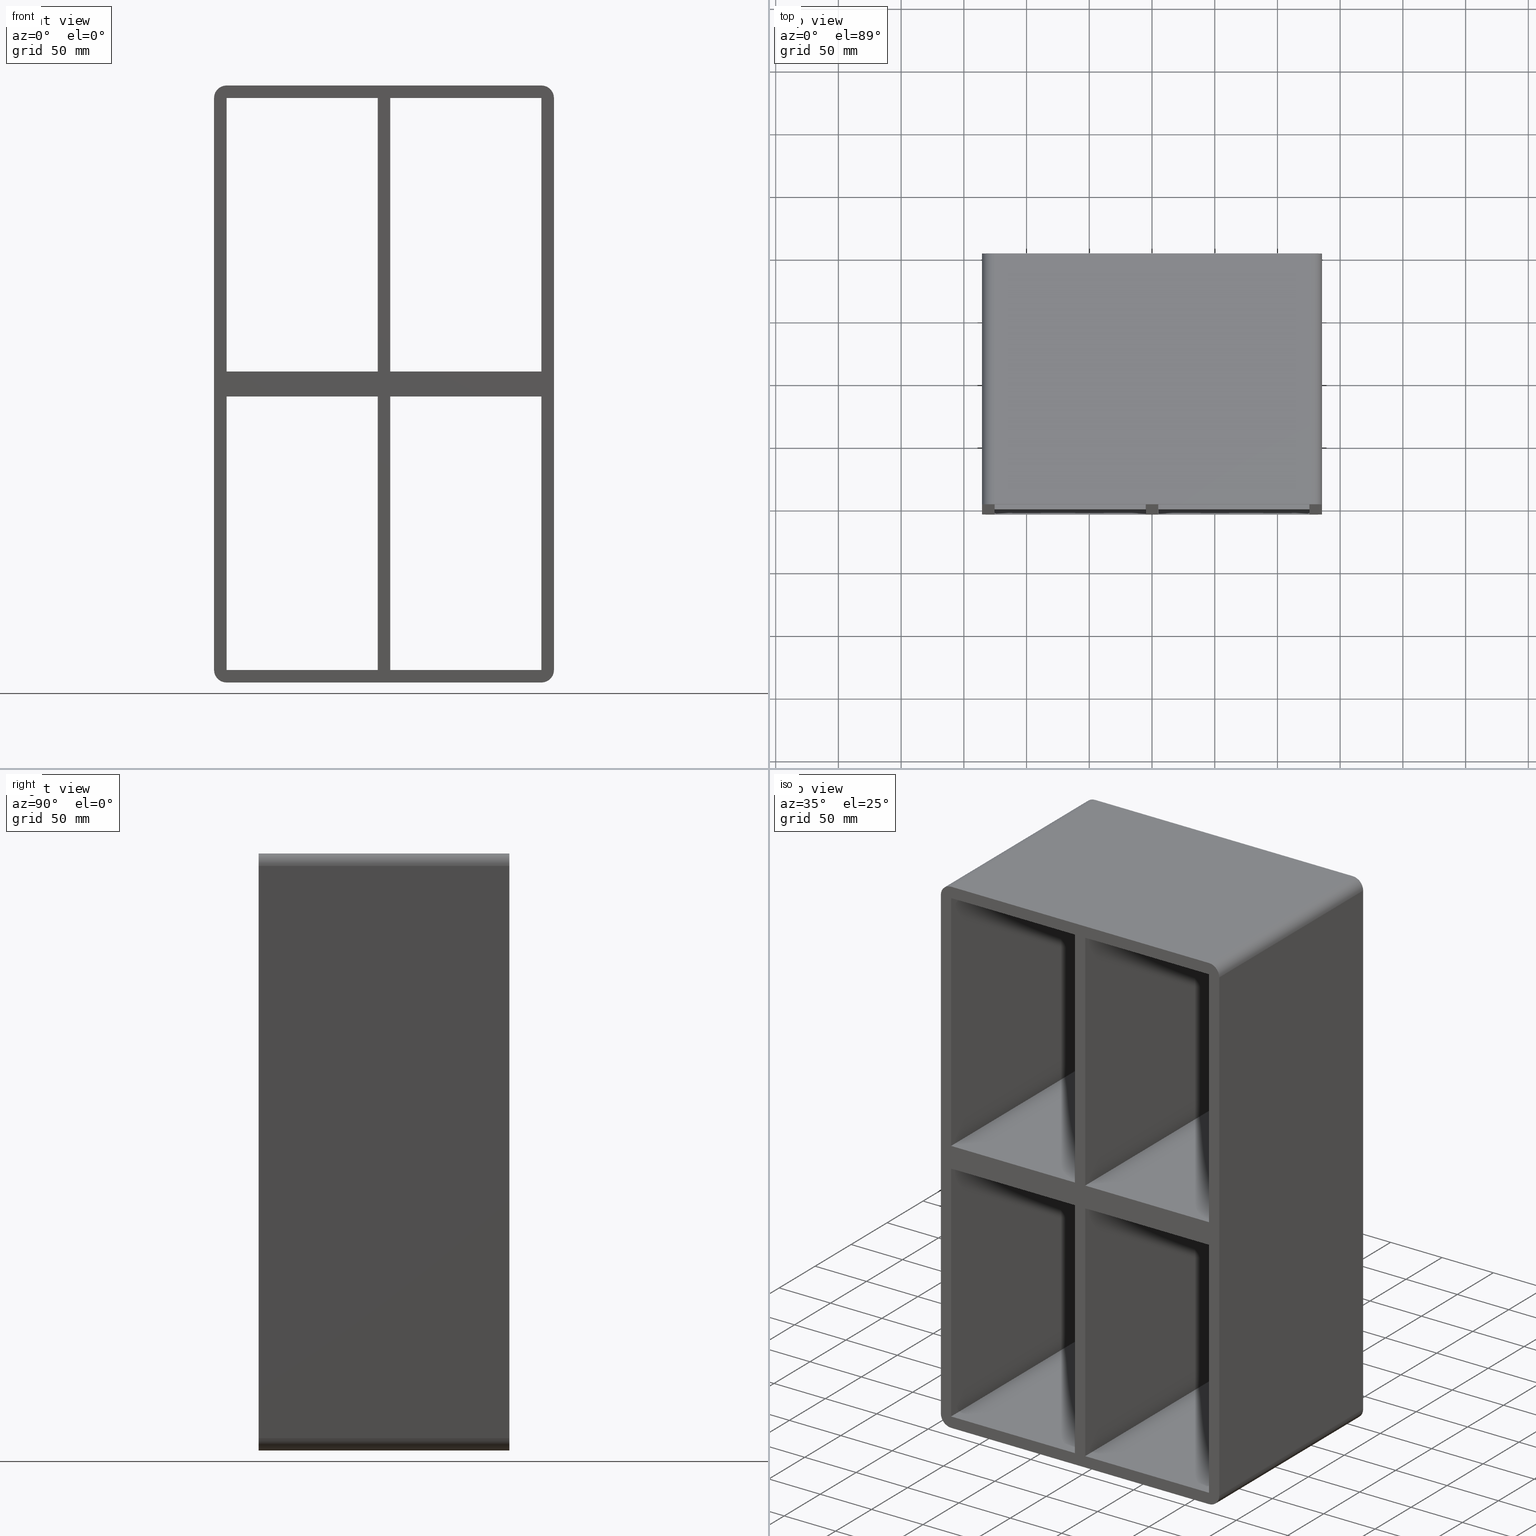
[diagram: canonical four-view strip — front | top / right | iso, engineering-drawing reading convention]
A machine part, canonical four-view strip (front | top / right | iso — engineering-drawing reading convention). The complete STEP part file that produces these views, byte-faithful:
ISO-10303-21;
HEADER;
/****************************************************************
 * Generated by software with PDElib inside                    *
 * PDElib Version v51a, created Wed 11/30/2011                  *
 * ITI Transcendata (http://www.transcendata.com/)              *
 ****************************************************************/
FILE_DESCRIPTION((''),'2;1');
FILE_NAME('C:\\RoxtecConfigurator\\CreatedFiles\\STEP\\SBTB6+6X2.stp','2013-02-26T13:31:53',(''),(''),'Autodesk Inventor 2013','Autodesk Inventor 2013','');
FILE_SCHEMA(('AUTOMOTIVE_DESIGN { 1 0 10303 214 1 1 1 1 }'));
ENDSEC;
DATA;
#5=APPLICATION_CONTEXT('automotive design');
#6=APPLICATION_PROTOCOL_DEFINITION('International Standard','automotive_design',2001,#5);
#7=PRODUCT_CONTEXT('',#5,'mechanical');
#8=PRODUCT('roxtec S_SF_G','roxtec S_SF_G',$,(#7));
#9=PRODUCT_RELATED_PRODUCT_CATEGORY('part',$,(#8));
#10=PRODUCT_DEFINITION_FORMATION('',$,#8);
#11=PRODUCT_DEFINITION_CONTEXT('part definition',#5,'design');
#12=PRODUCT_DEFINITION('',$,#10,#11);
#18=(NAMED_UNIT(*)PLANE_ANGLE_UNIT()SI_UNIT($,.RADIAN.));
#19=DIMENSIONAL_EXPONENTS(0.0,0.0,0.0,0.0,0.0,0.0,0.0);
#20=PLANE_ANGLE_MEASURE_WITH_UNIT(PLANE_ANGLE_MEASURE(0.0174532925),#18);
#24=(CONVERSION_BASED_UNIT('DEGREE',#20)NAMED_UNIT(#19)PLANE_ANGLE_UNIT());
#28=(NAMED_UNIT(*)SI_UNIT($,.STERADIAN.)SOLID_ANGLE_UNIT());
#32=(LENGTH_UNIT()NAMED_UNIT(*)SI_UNIT(.MILLI.,.METRE.));
#34=UNCERTAINTY_MEASURE_WITH_UNIT(LENGTH_MEASURE(0.01),#32,'DISTANCE_ACCURACY_VALUE','');
#36=(GEOMETRIC_REPRESENTATION_CONTEXT(3)GLOBAL_UNCERTAINTY_ASSIGNED_CONTEXT((#34))GLOBAL_UNIT_ASSIGNED_CONTEXT((#24,#28,#32))REPRESENTATION_CONTEXT('None','None'));
#37=AXIS2_PLACEMENT_3D('',#38,#39,#40);
#38=CARTESIAN_POINT('',(0.0,0.0,0.0));
#39=DIRECTION('',(0.0,0.0,1.0));
#40=DIRECTION('',(1.0,0.0,0.0));
#41=SHAPE_REPRESENTATION('',(#37),#36);
#42=PRODUCT_DEFINITION_SHAPE('','',#12);
#43=SHAPE_DEFINITION_REPRESENTATION(#42,#41);
#49=(NAMED_UNIT(*)PLANE_ANGLE_UNIT()SI_UNIT($,.RADIAN.));
#50=DIMENSIONAL_EXPONENTS(0.0,0.0,0.0,0.0,0.0,0.0,0.0);
#51=PLANE_ANGLE_MEASURE_WITH_UNIT(PLANE_ANGLE_MEASURE(0.0174532925),#49);
#55=(CONVERSION_BASED_UNIT('DEGREE',#51)NAMED_UNIT(#50)PLANE_ANGLE_UNIT());
#59=(NAMED_UNIT(*)SI_UNIT($,.STERADIAN.)SOLID_ANGLE_UNIT());
#63=(LENGTH_UNIT()NAMED_UNIT(*)SI_UNIT(.MILLI.,.METRE.));
#65=UNCERTAINTY_MEASURE_WITH_UNIT(LENGTH_MEASURE(0.000001),#63,'DISTANCE_ACCURACY_VALUE','');
#67=(GEOMETRIC_REPRESENTATION_CONTEXT(3)GLOBAL_UNCERTAINTY_ASSIGNED_CONTEXT((#65))GLOBAL_UNIT_ASSIGNED_CONTEXT((#55,#59,#63))REPRESENTATION_CONTEXT('','3D'));
#68=CARTESIAN_POINT('',(125.49999999999272,-3.0,-10.000000000017968));
#69=DIRECTION('',(0.0,0.0,-1.0));
#70=DIRECTION('',(-1.0,0.0,0.0));
#71=AXIS2_PLACEMENT_3D('',#68,#69,#70);
#72=PLANE('',#71);
#73=CARTESIAN_POINT('',(5.0,197.0,-10.000000000017939));
#74=VERTEX_POINT('',#73);
#75=CARTESIAN_POINT('',(5.0,-3.0,-10.000000000017939));
#76=VERTEX_POINT('',#75);
#77=CARTESIAN_POINT('',(5.0,197.0,-10.000000000017943));
#78=DIRECTION('',(0.0,-1.0,0.0));
#79=VECTOR('',#78,200.0);
#80=LINE('',#77,#79);
#81=EDGE_CURVE('',#74,#76,#80,.T.);
#82=ORIENTED_EDGE('',*,*,#81,.F.);
#83=CARTESIAN_POINT('',(125.49999999999274,197.0,-10.000000000017968));
#84=VERTEX_POINT('',#83);
#85=CARTESIAN_POINT('',(125.49999999999272,197.0,-10.000000000017968));
#86=DIRECTION('',(-1.0,0.0,0.0));
#87=VECTOR('',#86,120.49999999999272);
#88=LINE('',#85,#87);
#89=EDGE_CURVE('',#84,#74,#88,.T.);
#90=ORIENTED_EDGE('',*,*,#89,.F.);
#91=CARTESIAN_POINT('',(125.49999999999272,-3.0,-10.000000000017968));
#92=VERTEX_POINT('',#91);
#93=CARTESIAN_POINT('',(125.5,-3.0,-10.000000000017977));
#94=DIRECTION('',(0.0,1.0,0.0));
#95=VECTOR('',#94,199.99999999999997);
#96=LINE('',#93,#95);
#97=EDGE_CURVE('',#92,#84,#96,.T.);
#98=ORIENTED_EDGE('',*,*,#97,.F.);
#99=CARTESIAN_POINT('',(125.49999999999272,-3.0,-10.000000000017968));
#100=DIRECTION('',(-1.0,0.0,0.0));
#101=VECTOR('',#100,120.49999999999272);
#102=LINE('',#99,#101);
#103=EDGE_CURVE('',#92,#76,#102,.T.);
#104=ORIENTED_EDGE('',*,*,#103,.T.);
#105=EDGE_LOOP('',(#82,#90,#98,#104));
#106=FACE_OUTER_BOUND('',#105,.T.);
#107=ADVANCED_FACE('',(#106),#72,.T.);
#108=CARTESIAN_POINT('',(125.49999999999272,-3.0,-10.000000000017968));
#109=DIRECTION('',(0.0,0.0,-1.0));
#110=DIRECTION('',(-1.0,0.0,0.0));
#111=AXIS2_PLACEMENT_3D('',#108,#109,#110);
#112=PLANE('',#111);
#113=CARTESIAN_POINT('',(-5.000000000001243,-3.0,-10.000000000017934));
#114=VERTEX_POINT('',#113);
#115=CARTESIAN_POINT('',(-5.000000000001243,197.0,-10.000000000017934));
#116=VERTEX_POINT('',#115);
#117=CARTESIAN_POINT('',(-5.000000000001252,-3.0,-10.000000000017943));
#118=DIRECTION('',(0.0,1.0,0.0));
#119=VECTOR('',#118,200.0);
#120=LINE('',#117,#119);
#121=EDGE_CURVE('',#114,#116,#120,.T.);
#122=ORIENTED_EDGE('',*,*,#121,.F.);
#123=CARTESIAN_POINT('',(-125.49999999999967,-3.0,-10.000000000017906));
#124=VERTEX_POINT('',#123);
#125=CARTESIAN_POINT('',(-5.000000000001251,-3.0,-10.000000000017936));
#126=DIRECTION('',(-1.0,0.0,0.0));
#127=VECTOR('',#126,120.49999999999844);
#128=LINE('',#125,#127);
#129=EDGE_CURVE('',#114,#124,#128,.T.);
#130=ORIENTED_EDGE('',*,*,#129,.T.);
#131=CARTESIAN_POINT('',(-125.49999999999967,197.0,-10.000000000017906));
#132=VERTEX_POINT('',#131);
#133=CARTESIAN_POINT('',(-125.50000000000003,196.99999999999997,-10.000000000017909));
#134=DIRECTION('',(0.0,-1.0,0.0));
#135=VECTOR('',#134,199.99999999999997);
#136=LINE('',#133,#135);
#137=EDGE_CURVE('',#132,#124,#136,.T.);
#138=ORIENTED_EDGE('',*,*,#137,.F.);
#139=CARTESIAN_POINT('',(-5.000000000001251,197.0,-10.000000000017936));
#140=DIRECTION('',(-1.0,0.0,0.0));
#141=VECTOR('',#140,120.49999999999844);
#142=LINE('',#139,#141);
#143=EDGE_CURVE('',#116,#132,#142,.T.);
#144=ORIENTED_EDGE('',*,*,#143,.F.);
#145=EDGE_LOOP('',(#122,#130,#138,#144));
#146=FACE_OUTER_BOUND('',#145,.T.);
#147=ADVANCED_FACE('',(#146),#112,.T.);
#148=CARTESIAN_POINT('',(-125.49999999999967,-3.0,10.0));
#149=DIRECTION('',(0.0,0.0,1.0));
#150=DIRECTION('',(1.0,0.0,0.0));
#151=AXIS2_PLACEMENT_3D('',#148,#149,#150);
#152=PLANE('',#151);
#153=CARTESIAN_POINT('',(5.0,-3.0,10.0));
#154=VERTEX_POINT('',#153);
#155=CARTESIAN_POINT('',(5.0,197.0,10.0));
#156=VERTEX_POINT('',#155);
#157=CARTESIAN_POINT('',(5.0,-3.0,10.0));
#158=DIRECTION('',(0.0,1.0,0.0));
#159=VECTOR('',#158,200.0);
#160=LINE('',#157,#159);
#161=EDGE_CURVE('',#154,#156,#160,.T.);
#162=ORIENTED_EDGE('',*,*,#161,.F.);
#163=CARTESIAN_POINT('',(125.4999999999999,-3.0,10.0));
#164=VERTEX_POINT('',#163);
#165=CARTESIAN_POINT('',(4.999999999999986,-3.0,10.0));
#166=DIRECTION('',(1.0,0.0,0.0));
#167=VECTOR('',#166,120.49999999999994);
#168=LINE('',#165,#167);
#169=EDGE_CURVE('',#154,#164,#168,.T.);
#170=ORIENTED_EDGE('',*,*,#169,.T.);
#171=CARTESIAN_POINT('',(125.49999999999991,197.0,10.0));
#172=VERTEX_POINT('',#171);
#173=CARTESIAN_POINT('',(125.5,196.99999999999997,10.0));
#174=DIRECTION('',(0.0,-1.0,0.0));
#175=VECTOR('',#174,199.99999999999997);
#176=LINE('',#173,#175);
#177=EDGE_CURVE('',#172,#164,#176,.T.);
#178=ORIENTED_EDGE('',*,*,#177,.F.);
#179=CARTESIAN_POINT('',(4.999999999999986,197.0,10.0));
#180=DIRECTION('',(1.0,0.0,0.0));
#181=VECTOR('',#180,120.49999999999994);
#182=LINE('',#179,#181);
#183=EDGE_CURVE('',#156,#172,#182,.T.);
#184=ORIENTED_EDGE('',*,*,#183,.F.);
#185=EDGE_LOOP('',(#162,#170,#178,#184));
#186=FACE_OUTER_BOUND('',#185,.T.);
#187=ADVANCED_FACE('',(#186),#152,.T.);
#188=CARTESIAN_POINT('',(-125.49999999999967,-3.0,10.0));
#189=DIRECTION('',(0.0,0.0,1.0));
#190=DIRECTION('',(1.0,0.0,0.0));
#191=AXIS2_PLACEMENT_3D('',#188,#189,#190);
#192=PLANE('',#191);
#193=CARTESIAN_POINT('',(-5.000000000001261,197.0,10.0));
#194=VERTEX_POINT('',#193);
#195=CARTESIAN_POINT('',(-5.000000000001261,-3.0,10.0));
#196=VERTEX_POINT('',#195);
#197=CARTESIAN_POINT('',(-5.000000000001261,197.0,10.0));
#198=DIRECTION('',(0.0,-1.0,0.0));
#199=VECTOR('',#198,200.0);
#200=LINE('',#197,#199);
#201=EDGE_CURVE('',#194,#196,#200,.T.);
#202=ORIENTED_EDGE('',*,*,#201,.F.);
#203=CARTESIAN_POINT('',(-125.49999999999967,197.0,10.0));
#204=VERTEX_POINT('',#203);
#205=CARTESIAN_POINT('',(-125.49999999999967,197.0,10.0));
#206=DIRECTION('',(1.0,0.0,0.0));
#207=VECTOR('',#206,120.49999999999841);
#208=LINE('',#205,#207);
#209=EDGE_CURVE('',#204,#194,#208,.T.);
#210=ORIENTED_EDGE('',*,*,#209,.F.);
#211=CARTESIAN_POINT('',(-125.49999999999967,-3.0,10.0));
#212=VERTEX_POINT('',#211);
#213=CARTESIAN_POINT('',(-125.50000000000003,-3.0,10.0));
#214=DIRECTION('',(0.0,1.0,0.0));
#215=VECTOR('',#214,199.99999999999997);
#216=LINE('',#213,#215);
#217=EDGE_CURVE('',#212,#204,#216,.T.);
#218=ORIENTED_EDGE('',*,*,#217,.F.);
#219=CARTESIAN_POINT('',(-125.49999999999967,-3.0,10.0));
#220=DIRECTION('',(1.0,0.0,0.0));
#221=VECTOR('',#220,120.49999999999841);
#222=LINE('',#219,#221);
#223=EDGE_CURVE('',#212,#196,#222,.T.);
#224=ORIENTED_EDGE('',*,*,#223,.T.);
#225=EDGE_LOOP('',(#202,#210,#218,#224));
#226=FACE_OUTER_BOUND('',#225,.T.);
#227=ADVANCED_FACE('',(#226),#192,.T.);
#228=CARTESIAN_POINT('',(-125.50000000000003,0.0,-228.00000000000006));
#229=DIRECTION('',(-1.0,0.0,0.0));
#230=DIRECTION('',(0.0,0.0,1.0));
#231=AXIS2_PLACEMENT_3D('',#228,#229,#230);
#232=PLANE('',#231);
#233=ORIENTED_EDGE('',*,*,#217,.T.);
#234=CARTESIAN_POINT('',(-125.5,197.0,228.00000000000006));
#235=VERTEX_POINT('',#234);
#236=CARTESIAN_POINT('',(-125.50000000000003,197.0,227.99999999999997));
#237=DIRECTION('',(0.0,0.0,-1.0));
#238=VECTOR('',#237,217.99999999999997);
#239=LINE('',#236,#238);
#240=EDGE_CURVE('',#235,#204,#239,.T.);
#241=ORIENTED_EDGE('',*,*,#240,.F.);
#242=CARTESIAN_POINT('',(-125.5,-3.0,228.00000000000006));
#243=VERTEX_POINT('',#242);
#244=CARTESIAN_POINT('',(-125.50000000000003,-3.0,228.0));
#245=DIRECTION('',(0.0,1.0,0.0));
#246=VECTOR('',#245,200.0);
#247=LINE('',#244,#246);
#248=EDGE_CURVE('',#243,#235,#247,.T.);
#249=ORIENTED_EDGE('',*,*,#248,.F.);
#250=CARTESIAN_POINT('',(-125.50000000000003,-3.0,10.0));
#251=DIRECTION('',(0.0,0.0,1.0));
#252=VECTOR('',#251,217.99999999999997);
#253=LINE('',#250,#252);
#254=EDGE_CURVE('',#212,#243,#253,.T.);
#255=ORIENTED_EDGE('',*,*,#254,.F.);
#256=EDGE_LOOP('',(#233,#241,#249,#255));
#257=FACE_OUTER_BOUND('',#256,.T.);
#258=ADVANCED_FACE('',(#257),#232,.F.);
#259=CARTESIAN_POINT('',(125.5,0.0,228.0));
#260=DIRECTION('',(1.0,0.0,0.0));
#261=DIRECTION('',(0.0,0.0,-1.0));
#262=AXIS2_PLACEMENT_3D('',#259,#260,#261);
#263=PLANE('',#262);
#264=ORIENTED_EDGE('',*,*,#97,.T.);
#265=CARTESIAN_POINT('',(125.5,197.0,-228.00000000000006));
#266=VERTEX_POINT('',#265);
#267=CARTESIAN_POINT('',(125.5,197.0,-228.0));
#268=DIRECTION('',(0.0,0.0,1.0));
#269=VECTOR('',#268,217.99999999998204);
#270=LINE('',#267,#269);
#271=EDGE_CURVE('',#266,#84,#270,.T.);
#272=ORIENTED_EDGE('',*,*,#271,.F.);
#273=CARTESIAN_POINT('',(125.5,-3.0,-228.00000000000006));
#274=VERTEX_POINT('',#273);
#275=CARTESIAN_POINT('',(125.5,197.0,-228.00000000000006));
#276=DIRECTION('',(0.0,-1.0,0.0));
#277=VECTOR('',#276,200.0);
#278=LINE('',#275,#277);
#279=EDGE_CURVE('',#266,#274,#278,.T.);
#280=ORIENTED_EDGE('',*,*,#279,.T.);
#281=CARTESIAN_POINT('',(125.5,-3.0,-10.000000000017963));
#282=DIRECTION('',(0.0,0.0,-1.0));
#283=VECTOR('',#282,217.99999999998204);
#284=LINE('',#281,#283);
#285=EDGE_CURVE('',#92,#274,#284,.T.);
#286=ORIENTED_EDGE('',*,*,#285,.F.);
#287=EDGE_LOOP('',(#264,#272,#280,#286));
#288=FACE_OUTER_BOUND('',#287,.T.);
#289=ADVANCED_FACE('',(#288),#263,.F.);
#290=CARTESIAN_POINT('',(125.5,0.0,228.0));
#291=DIRECTION('',(1.0,0.0,0.0));
#292=DIRECTION('',(0.0,0.0,-1.0));
#293=AXIS2_PLACEMENT_3D('',#290,#291,#292);
#294=PLANE('',#293);
#295=ORIENTED_EDGE('',*,*,#177,.T.);
#296=CARTESIAN_POINT('',(125.5,-3.0,228.00000000000006));
#297=VERTEX_POINT('',#296);
#298=CARTESIAN_POINT('',(125.5,-3.0,228.00000000000006));
#299=DIRECTION('',(0.0,0.0,-1.0));
#300=VECTOR('',#299,218.00000000000006);
#301=LINE('',#298,#300);
#302=EDGE_CURVE('',#297,#164,#301,.T.);
#303=ORIENTED_EDGE('',*,*,#302,.F.);
#304=CARTESIAN_POINT('',(125.5,197.0,228.00000000000006));
#305=VERTEX_POINT('',#304);
#306=CARTESIAN_POINT('',(125.5,-3.0,228.0));
#307=DIRECTION('',(0.0,1.0,0.0));
#308=VECTOR('',#307,200.0);
#309=LINE('',#306,#308);
#310=EDGE_CURVE('',#297,#305,#309,.T.);
#311=ORIENTED_EDGE('',*,*,#310,.T.);
#312=CARTESIAN_POINT('',(125.5,197.0,10.0));
#313=DIRECTION('',(0.0,0.0,1.0));
#314=VECTOR('',#313,218.00000000000006);
#315=LINE('',#312,#314);
#316=EDGE_CURVE('',#172,#305,#315,.T.);
#317=ORIENTED_EDGE('',*,*,#316,.F.);
#318=EDGE_LOOP('',(#295,#303,#311,#317));
#319=FACE_OUTER_BOUND('',#318,.T.);
#320=ADVANCED_FACE('',(#319),#294,.F.);
#321=CARTESIAN_POINT('',(-1.463651E-014,197.0,0.0));
#322=DIRECTION('',(0.0,1.0,0.0));
#323=DIRECTION('',(0.0,0.0,1.0));
#324=AXIS2_PLACEMENT_3D('',#321,#322,#323);
#325=PLANE('',#324);
#326=CARTESIAN_POINT('',(-135.50000000000003,197.0,-228.0));
#327=VERTEX_POINT('',#326);
#328=CARTESIAN_POINT('',(-125.50000000000003,197.0,-238.0));
#329=VERTEX_POINT('',#328);
#330=CARTESIAN_POINT('',(-125.50000000000003,197.0,-228.0));
#331=DIRECTION('',(0.0,-1.0,0.0));
#332=DIRECTION('',(-0.707106781186547,0.0,-0.707106781186547));
#333=AXIS2_PLACEMENT_3D('',#330,#331,#332);
#334=CIRCLE('',#333,9.999999999999998);
#335=EDGE_CURVE('',#327,#329,#334,.T.);
#336=ORIENTED_EDGE('',*,*,#335,.F.);
#337=CARTESIAN_POINT('',(-135.50000000000003,197.0,228.0));
#338=VERTEX_POINT('',#337);
#339=CARTESIAN_POINT('',(-135.50000000000003,197.0,-228.0));
#340=DIRECTION('',(0.0,0.0,1.0));
#341=VECTOR('',#340,456.0);
#342=LINE('',#339,#341);
#343=EDGE_CURVE('',#327,#338,#342,.T.);
#344=ORIENTED_EDGE('',*,*,#343,.T.);
#345=CARTESIAN_POINT('',(-125.50000000000003,197.0,238.0));
#346=VERTEX_POINT('',#345);
#347=CARTESIAN_POINT('',(-125.50000000000003,197.0,228.0));
#348=DIRECTION('',(0.0,-1.0,0.0));
#349=DIRECTION('',(-0.707106781186547,0.0,0.707106781186547));
#350=AXIS2_PLACEMENT_3D('',#347,#348,#349);
#351=CIRCLE('',#350,9.999999999999998);
#352=EDGE_CURVE('',#346,#338,#351,.T.);
#353=ORIENTED_EDGE('',*,*,#352,.F.);
#354=CARTESIAN_POINT('',(125.49999999999999,197.0,238.0));
#355=VERTEX_POINT('',#354);
#356=CARTESIAN_POINT('',(-125.50000000000003,197.0,238.0));
#357=DIRECTION('',(1.0,0.0,0.0));
#358=VECTOR('',#357,251.0);
#359=LINE('',#356,#358);
#360=EDGE_CURVE('',#346,#355,#359,.T.);
#361=ORIENTED_EDGE('',*,*,#360,.T.);
#362=CARTESIAN_POINT('',(135.5,197.0,228.0));
#363=VERTEX_POINT('',#362);
#364=CARTESIAN_POINT('',(125.49999999999999,197.0,228.0));
#365=DIRECTION('',(0.0,-1.0,0.0));
#366=DIRECTION('',(0.707106781186547,0.0,0.707106781186547));
#367=AXIS2_PLACEMENT_3D('',#364,#365,#366);
#368=CIRCLE('',#367,9.999999999999998);
#369=EDGE_CURVE('',#363,#355,#368,.T.);
#370=ORIENTED_EDGE('',*,*,#369,.F.);
#371=CARTESIAN_POINT('',(135.5,197.0,-228.0));
#372=VERTEX_POINT('',#371);
#373=CARTESIAN_POINT('',(135.5,197.0,228.0));
#374=DIRECTION('',(0.0,0.0,-1.0));
#375=VECTOR('',#374,456.0);
#376=LINE('',#373,#375);
#377=EDGE_CURVE('',#363,#372,#376,.T.);
#378=ORIENTED_EDGE('',*,*,#377,.T.);
#379=CARTESIAN_POINT('',(125.49999999999999,197.0,-238.0));
#380=VERTEX_POINT('',#379);
#381=CARTESIAN_POINT('',(125.49999999999999,197.0,-228.0));
#382=DIRECTION('',(0.0,-1.0,0.0));
#383=DIRECTION('',(0.707106781186547,0.0,-0.707106781186547));
#384=AXIS2_PLACEMENT_3D('',#381,#382,#383);
#385=CIRCLE('',#384,9.999999999999998);
#386=EDGE_CURVE('',#380,#372,#385,.T.);
#387=ORIENTED_EDGE('',*,*,#386,.F.);
#388=CARTESIAN_POINT('',(125.5,197.0,-238.0));
#389=DIRECTION('',(-1.0,0.0,0.0));
#390=VECTOR('',#389,251.0);
#391=LINE('',#388,#390);
#392=EDGE_CURVE('',#380,#329,#391,.T.);
#393=ORIENTED_EDGE('',*,*,#392,.T.);
#394=EDGE_LOOP('',(#336,#344,#353,#361,#370,#378,#387,#393));
#395=FACE_OUTER_BOUND('',#394,.T.);
#396=CARTESIAN_POINT('',(-125.5,197.0,-228.00000000000006));
#397=VERTEX_POINT('',#396);
#398=CARTESIAN_POINT('',(-125.50000000000003,197.0,-10.000000000017906));
#399=DIRECTION('',(0.0,0.0,-1.0));
#400=VECTOR('',#399,217.99999999998215);
#401=LINE('',#398,#400);
#402=EDGE_CURVE('',#132,#397,#401,.T.);
#403=ORIENTED_EDGE('',*,*,#402,.T.);
#404=CARTESIAN_POINT('',(-5.000000000001217,197.0,-228.00000000000006));
#405=VERTEX_POINT('',#404);
#406=CARTESIAN_POINT('',(-125.5,197.0,-228.00000000000006));
#407=DIRECTION('',(1.0,0.0,0.0));
#408=VECTOR('',#407,120.49999999999878);
#409=LINE('',#406,#408);
#410=EDGE_CURVE('',#397,#405,#409,.T.);
#411=ORIENTED_EDGE('',*,*,#410,.T.);
#412=CARTESIAN_POINT('',(-5.000000000001217,197.0,-228.00000000000006));
#413=DIRECTION('',(0.0,0.0,1.0));
#414=VECTOR('',#413,217.99999999998209);
#415=LINE('',#412,#414);
#416=EDGE_CURVE('',#405,#116,#415,.T.);
#417=ORIENTED_EDGE('',*,*,#416,.T.);
#418=ORIENTED_EDGE('',*,*,#143,.T.);
#419=EDGE_LOOP('',(#403,#411,#417,#418));
#420=FACE_BOUND('',#419,.T.);
#421=ORIENTED_EDGE('',*,*,#316,.T.);
#422=CARTESIAN_POINT('',(5.0,197.0,228.00000000000006));
#423=VERTEX_POINT('',#422);
#424=CARTESIAN_POINT('',(125.5,197.0,228.0));
#425=DIRECTION('',(-1.0,0.0,0.0));
#426=VECTOR('',#425,120.5);
#427=LINE('',#424,#426);
#428=EDGE_CURVE('',#305,#423,#427,.T.);
#429=ORIENTED_EDGE('',*,*,#428,.T.);
#430=CARTESIAN_POINT('',(5.0,197.0,228.00000000000006));
#431=DIRECTION('',(0.0,0.0,-1.0));
#432=VECTOR('',#431,218.00000000000006);
#433=LINE('',#430,#432);
#434=EDGE_CURVE('',#423,#156,#433,.T.);
#435=ORIENTED_EDGE('',*,*,#434,.T.);
#436=ORIENTED_EDGE('',*,*,#183,.T.);
#437=EDGE_LOOP('',(#421,#429,#435,#436));
#438=FACE_BOUND('',#437,.T.);
#439=ORIENTED_EDGE('',*,*,#89,.T.);
#440=CARTESIAN_POINT('',(5.0,197.0,-227.99999999997084));
#441=VERTEX_POINT('',#440);
#442=CARTESIAN_POINT('',(5.0,197.0,-10.000000000017934));
#443=DIRECTION('',(0.0,0.0,-1.0));
#444=VECTOR('',#443,217.99999999995291);
#445=LINE('',#442,#444);
#446=EDGE_CURVE('',#74,#441,#445,.T.);
#447=ORIENTED_EDGE('',*,*,#446,.T.);
#448=CARTESIAN_POINT('',(5.0,197.0,-228.00000000000006));
#449=DIRECTION('',(1.0,0.0,0.0));
#450=VECTOR('',#449,120.5);
#451=LINE('',#448,#450);
#452=EDGE_CURVE('',#441,#266,#451,.T.);
#453=ORIENTED_EDGE('',*,*,#452,.T.);
#454=ORIENTED_EDGE('',*,*,#271,.T.);
#455=EDGE_LOOP('',(#439,#447,#453,#454));
#456=FACE_BOUND('',#455,.T.);
#457=ORIENTED_EDGE('',*,*,#209,.T.);
#458=CARTESIAN_POINT('',(-5.000000000001297,197.0,228.00000000000006));
#459=VERTEX_POINT('',#458);
#460=CARTESIAN_POINT('',(-5.000000000001259,197.0,10.0));
#461=DIRECTION('',(0.0,0.0,1.0));
#462=VECTOR('',#461,218.00000000000006);
#463=LINE('',#460,#462);
#464=EDGE_CURVE('',#194,#459,#463,.T.);
#465=ORIENTED_EDGE('',*,*,#464,.T.);
#466=CARTESIAN_POINT('',(-5.0000000000013,197.0,228.0));
#467=DIRECTION('',(-1.0,0.0,0.0));
#468=VECTOR('',#467,120.49999999999869);
#469=LINE('',#466,#468);
#470=EDGE_CURVE('',#459,#235,#469,.T.);
#471=ORIENTED_EDGE('',*,*,#470,.T.);
#472=ORIENTED_EDGE('',*,*,#240,.T.);
#473=EDGE_LOOP('',(#457,#465,#471,#472));
#474=FACE_BOUND('',#473,.T.);
#475=ADVANCED_FACE('',(#395,#420,#438,#456,#474),#325,.T.);
#476=CARTESIAN_POINT('',(-5.000000000001217,-3.0,-228.00000000000006));
#477=DIRECTION('',(-1.0,0.0,0.0));
#478=DIRECTION('',(0.0,0.0,1.0));
#479=AXIS2_PLACEMENT_3D('',#476,#477,#478);
#480=PLANE('',#479);
#481=ORIENTED_EDGE('',*,*,#201,.T.);
#482=CARTESIAN_POINT('',(-5.000000000001297,-3.0,228.00000000000006));
#483=VERTEX_POINT('',#482);
#484=CARTESIAN_POINT('',(-5.000000000001259,-3.0,10.0));
#485=DIRECTION('',(0.0,0.0,1.0));
#486=VECTOR('',#485,218.00000000000006);
#487=LINE('',#484,#486);
#488=EDGE_CURVE('',#196,#483,#487,.T.);
#489=ORIENTED_EDGE('',*,*,#488,.T.);
#490=CARTESIAN_POINT('',(-5.000000000001301,196.99999999999997,228.0));
#491=DIRECTION('',(0.0,-1.0,0.0));
#492=VECTOR('',#491,199.99999999999997);
#493=LINE('',#490,#492);
#494=EDGE_CURVE('',#459,#483,#493,.T.);
#495=ORIENTED_EDGE('',*,*,#494,.F.);
#496=ORIENTED_EDGE('',*,*,#464,.F.);
#497=EDGE_LOOP('',(#481,#489,#495,#496));
#498=FACE_OUTER_BOUND('',#497,.T.);
#499=ADVANCED_FACE('',(#498),#480,.T.);
#500=CARTESIAN_POINT('',(5.0,-3.0,228.00000000000006));
#501=DIRECTION('',(1.0,0.0,0.0));
#502=DIRECTION('',(0.0,0.0,-1.0));
#503=AXIS2_PLACEMENT_3D('',#500,#501,#502);
#504=PLANE('',#503);
#505=ORIENTED_EDGE('',*,*,#161,.T.);
#506=ORIENTED_EDGE('',*,*,#434,.F.);
#507=CARTESIAN_POINT('',(5.0,-3.0,228.00000000000006));
#508=VERTEX_POINT('',#507);
#509=CARTESIAN_POINT('',(5.0,-3.0,228.0));
#510=DIRECTION('',(0.0,1.0,0.0));
#511=VECTOR('',#510,199.99999999999997);
#512=LINE('',#509,#511);
#513=EDGE_CURVE('',#508,#423,#512,.T.);
#514=ORIENTED_EDGE('',*,*,#513,.F.);
#515=CARTESIAN_POINT('',(5.0,-3.0,228.00000000000006));
#516=DIRECTION('',(0.0,0.0,-1.0));
#517=VECTOR('',#516,218.00000000000006);
#518=LINE('',#515,#517);
#519=EDGE_CURVE('',#508,#154,#518,.T.);
#520=ORIENTED_EDGE('',*,*,#519,.T.);
#521=EDGE_LOOP('',(#505,#506,#514,#520));
#522=FACE_OUTER_BOUND('',#521,.T.);
#523=ADVANCED_FACE('',(#522),#504,.T.);
#524=CARTESIAN_POINT('',(-5.000000000001217,-3.0,-228.00000000000006));
#525=DIRECTION('',(-1.0,0.0,0.0));
#526=DIRECTION('',(0.0,0.0,1.0));
#527=AXIS2_PLACEMENT_3D('',#524,#525,#526);
#528=PLANE('',#527);
#529=ORIENTED_EDGE('',*,*,#121,.T.);
#530=ORIENTED_EDGE('',*,*,#416,.F.);
#531=CARTESIAN_POINT('',(-5.000000000001217,-3.0,-228.00000000000006));
#532=VERTEX_POINT('',#531);
#533=CARTESIAN_POINT('',(-5.000000000001208,-3.0,-228.00000000000006));
#534=DIRECTION('',(0.0,1.0,0.0));
#535=VECTOR('',#534,199.99999999999997);
#536=LINE('',#533,#535);
#537=EDGE_CURVE('',#532,#405,#536,.T.);
#538=ORIENTED_EDGE('',*,*,#537,.F.);
#539=CARTESIAN_POINT('',(-5.000000000001217,-3.0,-228.00000000000006));
#540=DIRECTION('',(0.0,0.0,1.0));
#541=VECTOR('',#540,217.99999999998209);
#542=LINE('',#539,#541);
#543=EDGE_CURVE('',#532,#114,#542,.T.);
#544=ORIENTED_EDGE('',*,*,#543,.T.);
#545=EDGE_LOOP('',(#529,#530,#538,#544));
#546=FACE_OUTER_BOUND('',#545,.T.);
#547=ADVANCED_FACE('',(#546),#528,.T.);
#548=CARTESIAN_POINT('',(5.0,-3.0,228.00000000000006));
#549=DIRECTION('',(1.0,0.0,0.0));
#550=DIRECTION('',(0.0,0.0,-1.0));
#551=AXIS2_PLACEMENT_3D('',#548,#549,#550);
#552=PLANE('',#551);
#553=ORIENTED_EDGE('',*,*,#81,.T.);
#554=CARTESIAN_POINT('',(5.0,-3.0,-227.99999999997084));
#555=VERTEX_POINT('',#554);
#556=CARTESIAN_POINT('',(5.0,-3.0,-10.000000000017934));
#557=DIRECTION('',(0.0,0.0,-1.0));
#558=VECTOR('',#557,217.99999999995291);
#559=LINE('',#556,#558);
#560=EDGE_CURVE('',#76,#555,#559,.T.);
#561=ORIENTED_EDGE('',*,*,#560,.T.);
#562=CARTESIAN_POINT('',(5.0,196.99999999999997,-228.00000000000006));
#563=DIRECTION('',(0.0,-1.0,0.0));
#564=VECTOR('',#563,199.99999999999997);
#565=LINE('',#562,#564);
#566=EDGE_CURVE('',#441,#555,#565,.T.);
#567=ORIENTED_EDGE('',*,*,#566,.F.);
#568=ORIENTED_EDGE('',*,*,#446,.F.);
#569=EDGE_LOOP('',(#553,#561,#567,#568));
#570=FACE_OUTER_BOUND('',#569,.T.);
#571=ADVANCED_FACE('',(#570),#552,.T.);
#572=CARTESIAN_POINT('',(125.5,0.0,-228.00000000000006));
#573=DIRECTION('',(0.0,0.0,-1.0));
#574=DIRECTION('',(-1.0,0.0,0.0));
#575=AXIS2_PLACEMENT_3D('',#572,#573,#574);
#576=PLANE('',#575);
#577=ORIENTED_EDGE('',*,*,#537,.T.);
#578=ORIENTED_EDGE('',*,*,#410,.F.);
#579=CARTESIAN_POINT('',(-125.5,-3.0,-228.00000000000006));
#580=VERTEX_POINT('',#579);
#581=CARTESIAN_POINT('',(-125.50000000000003,-3.0,-228.00000000000006));
#582=DIRECTION('',(0.0,1.0,0.0));
#583=VECTOR('',#582,200.0);
#584=LINE('',#581,#583);
#585=EDGE_CURVE('',#580,#397,#584,.T.);
#586=ORIENTED_EDGE('',*,*,#585,.F.);
#587=CARTESIAN_POINT('',(-5.000000000001215,-3.0,-228.00000000000006));
#588=DIRECTION('',(-1.0,0.0,0.0));
#589=VECTOR('',#588,120.49999999999878);
#590=LINE('',#587,#589);
#591=EDGE_CURVE('',#532,#580,#590,.T.);
#592=ORIENTED_EDGE('',*,*,#591,.F.);
#593=EDGE_LOOP('',(#577,#578,#586,#592));
#594=FACE_OUTER_BOUND('',#593,.T.);
#595=ADVANCED_FACE('',(#594),#576,.F.);
#596=CARTESIAN_POINT('',(125.5,0.0,-228.00000000000006));
#597=DIRECTION('',(0.0,0.0,-1.0));
#598=DIRECTION('',(-1.0,0.0,0.0));
#599=AXIS2_PLACEMENT_3D('',#596,#597,#598);
#600=PLANE('',#599);
#601=ORIENTED_EDGE('',*,*,#566,.T.);
#602=CARTESIAN_POINT('',(125.5,-3.0,-228.00000000000006));
#603=DIRECTION('',(-1.0,0.0,0.0));
#604=VECTOR('',#603,120.5);
#605=LINE('',#602,#604);
#606=EDGE_CURVE('',#274,#555,#605,.T.);
#607=ORIENTED_EDGE('',*,*,#606,.F.);
#608=ORIENTED_EDGE('',*,*,#279,.F.);
#609=ORIENTED_EDGE('',*,*,#452,.F.);
#610=EDGE_LOOP('',(#601,#607,#608,#609));
#611=FACE_OUTER_BOUND('',#610,.T.);
#612=ADVANCED_FACE('',(#611),#600,.F.);
#613=CARTESIAN_POINT('',(-125.50000000000003,0.0,228.0));
#614=DIRECTION('',(0.0,0.0,1.0));
#615=DIRECTION('',(1.0,0.0,0.0));
#616=AXIS2_PLACEMENT_3D('',#613,#614,#615);
#617=PLANE('',#616);
#618=ORIENTED_EDGE('',*,*,#513,.T.);
#619=ORIENTED_EDGE('',*,*,#428,.F.);
#620=ORIENTED_EDGE('',*,*,#310,.F.);
#621=CARTESIAN_POINT('',(5.000000000000007,-3.0,228.0));
#622=DIRECTION('',(1.0,0.0,0.0));
#623=VECTOR('',#622,120.5);
#624=LINE('',#621,#623);
#625=EDGE_CURVE('',#508,#297,#624,.T.);
#626=ORIENTED_EDGE('',*,*,#625,.F.);
#627=EDGE_LOOP('',(#618,#619,#620,#626));
#628=FACE_OUTER_BOUND('',#627,.T.);
#629=ADVANCED_FACE('',(#628),#617,.F.);
#630=CARTESIAN_POINT('',(-125.50000000000003,0.0,228.0));
#631=DIRECTION('',(0.0,0.0,1.0));
#632=DIRECTION('',(1.0,0.0,0.0));
#633=AXIS2_PLACEMENT_3D('',#630,#631,#632);
#634=PLANE('',#633);
#635=ORIENTED_EDGE('',*,*,#494,.T.);
#636=CARTESIAN_POINT('',(-125.5,-3.0,228.0));
#637=DIRECTION('',(1.0,0.0,0.0));
#638=VECTOR('',#637,120.49999999999869);
#639=LINE('',#636,#638);
#640=EDGE_CURVE('',#243,#483,#639,.T.);
#641=ORIENTED_EDGE('',*,*,#640,.F.);
#642=ORIENTED_EDGE('',*,*,#248,.T.);
#643=ORIENTED_EDGE('',*,*,#470,.F.);
#644=EDGE_LOOP('',(#635,#641,#642,#643));
#645=FACE_OUTER_BOUND('',#644,.T.);
#646=ADVANCED_FACE('',(#645),#634,.F.);
#647=CARTESIAN_POINT('',(-125.50000000000003,0.0,-228.0));
#648=DIRECTION('',(0.0,1.0,0.0));
#649=DIRECTION('',(-0.707106781186547,0.0,-0.707106781186547));
#650=AXIS2_PLACEMENT_3D('',#647,#648,#649);
#651=CYLINDRICAL_SURFACE('',#650,10.0);
#652=ORIENTED_EDGE('',*,*,#335,.T.);
#653=CARTESIAN_POINT('',(-125.50000000000003,-3.0,-238.0));
#654=VERTEX_POINT('',#653);
#655=CARTESIAN_POINT('',(-125.50000000000003,197.0,-238.0));
#656=DIRECTION('',(0.0,-1.0,0.0));
#657=VECTOR('',#656,200.0);
#658=LINE('',#655,#657);
#659=EDGE_CURVE('',#329,#654,#658,.T.);
#660=ORIENTED_EDGE('',*,*,#659,.T.);
#661=CARTESIAN_POINT('',(-135.50000000000003,-3.0,-228.0));
#662=VERTEX_POINT('',#661);
#663=CARTESIAN_POINT('',(-125.50000000000003,-3.0,-228.0));
#664=DIRECTION('',(0.0,1.0,0.0));
#665=DIRECTION('',(-0.707106781186547,0.0,-0.707106781186547));
#666=AXIS2_PLACEMENT_3D('',#663,#664,#665);
#667=CIRCLE('',#666,9.999999999999998);
#668=EDGE_CURVE('',#654,#662,#667,.T.);
#669=ORIENTED_EDGE('',*,*,#668,.T.);
#670=CARTESIAN_POINT('',(-135.50000000000003,-3.0,-228.0));
#671=DIRECTION('',(0.0,1.0,0.0));
#672=VECTOR('',#671,200.0);
#673=LINE('',#670,#672);
#674=EDGE_CURVE('',#662,#327,#673,.T.);
#675=ORIENTED_EDGE('',*,*,#674,.T.);
#676=EDGE_LOOP('',(#652,#660,#669,#675));
#677=FACE_OUTER_BOUND('',#676,.T.);
#678=ADVANCED_FACE('',(#677),#651,.T.);
#679=CARTESIAN_POINT('',(-1.463651E-014,-3.0,0.0));
#680=DIRECTION('',(0.0,1.0,0.0));
#681=DIRECTION('',(0.0,0.0,1.0));
#682=AXIS2_PLACEMENT_3D('',#679,#680,#681);
#683=PLANE('',#682);
#684=ORIENTED_EDGE('',*,*,#668,.F.);
#685=CARTESIAN_POINT('',(125.49999999999999,-3.0,-238.0));
#686=VERTEX_POINT('',#685);
#687=CARTESIAN_POINT('',(-125.5,-3.0,-238.0));
#688=DIRECTION('',(1.0,0.0,0.0));
#689=VECTOR('',#688,251.0);
#690=LINE('',#687,#689);
#691=EDGE_CURVE('',#654,#686,#690,.T.);
#692=ORIENTED_EDGE('',*,*,#691,.T.);
#693=CARTESIAN_POINT('',(135.5,-3.0,-228.0));
#694=VERTEX_POINT('',#693);
#695=CARTESIAN_POINT('',(125.49999999999999,-3.0,-228.0));
#696=DIRECTION('',(0.0,1.0,0.0));
#697=DIRECTION('',(0.707106781186547,0.0,-0.707106781186547));
#698=AXIS2_PLACEMENT_3D('',#695,#696,#697);
#699=CIRCLE('',#698,9.999999999999998);
#700=EDGE_CURVE('',#694,#686,#699,.T.);
#701=ORIENTED_EDGE('',*,*,#700,.F.);
#702=CARTESIAN_POINT('',(135.5,-3.0,228.0));
#703=VERTEX_POINT('',#702);
#704=CARTESIAN_POINT('',(135.5,-3.0,-228.0));
#705=DIRECTION('',(0.0,0.0,1.0));
#706=VECTOR('',#705,456.0);
#707=LINE('',#704,#706);
#708=EDGE_CURVE('',#694,#703,#707,.T.);
#709=ORIENTED_EDGE('',*,*,#708,.T.);
#710=CARTESIAN_POINT('',(125.49999999999999,-3.0,238.0));
#711=VERTEX_POINT('',#710);
#712=CARTESIAN_POINT('',(125.49999999999999,-3.0,228.0));
#713=DIRECTION('',(0.0,1.0,0.0));
#714=DIRECTION('',(0.707106781186547,0.0,0.707106781186547));
#715=AXIS2_PLACEMENT_3D('',#712,#713,#714);
#716=CIRCLE('',#715,9.999999999999998);
#717=EDGE_CURVE('',#711,#703,#716,.T.);
#718=ORIENTED_EDGE('',*,*,#717,.F.);
#719=CARTESIAN_POINT('',(-125.50000000000003,-3.0,238.0));
#720=VERTEX_POINT('',#719);
#721=CARTESIAN_POINT('',(125.49999999999997,-3.0,238.0));
#722=DIRECTION('',(-1.0,0.0,0.0));
#723=VECTOR('',#722,251.0);
#724=LINE('',#721,#723);
#725=EDGE_CURVE('',#711,#720,#724,.T.);
#726=ORIENTED_EDGE('',*,*,#725,.T.);
#727=CARTESIAN_POINT('',(-135.50000000000003,-3.0,228.0));
#728=VERTEX_POINT('',#727);
#729=CARTESIAN_POINT('',(-125.50000000000003,-3.0,228.0));
#730=DIRECTION('',(0.0,1.0,0.0));
#731=DIRECTION('',(-0.707106781186547,0.0,0.707106781186547));
#732=AXIS2_PLACEMENT_3D('',#729,#730,#731);
#733=CIRCLE('',#732,9.999999999999998);
#734=EDGE_CURVE('',#728,#720,#733,.T.);
#735=ORIENTED_EDGE('',*,*,#734,.F.);
#736=CARTESIAN_POINT('',(-135.50000000000003,-3.0,228.0));
#737=DIRECTION('',(0.0,0.0,-1.0));
#738=VECTOR('',#737,456.0);
#739=LINE('',#736,#738);
#740=EDGE_CURVE('',#728,#662,#739,.T.);
#741=ORIENTED_EDGE('',*,*,#740,.T.);
#742=EDGE_LOOP('',(#684,#692,#701,#709,#718,#726,#735,#741));
#743=FACE_OUTER_BOUND('',#742,.T.);
#744=ORIENTED_EDGE('',*,*,#254,.T.);
#745=ORIENTED_EDGE('',*,*,#640,.T.);
#746=ORIENTED_EDGE('',*,*,#488,.F.);
#747=ORIENTED_EDGE('',*,*,#223,.F.);
#748=EDGE_LOOP('',(#744,#745,#746,#747));
#749=FACE_BOUND('',#748,.T.);
#750=ORIENTED_EDGE('',*,*,#285,.T.);
#751=ORIENTED_EDGE('',*,*,#606,.T.);
#752=ORIENTED_EDGE('',*,*,#560,.F.);
#753=ORIENTED_EDGE('',*,*,#103,.F.);
#754=EDGE_LOOP('',(#750,#751,#752,#753));
#755=FACE_BOUND('',#754,.T.);
#756=ORIENTED_EDGE('',*,*,#129,.F.);
#757=ORIENTED_EDGE('',*,*,#543,.F.);
#758=ORIENTED_EDGE('',*,*,#591,.T.);
#759=CARTESIAN_POINT('',(-125.50000000000003,-3.0,-228.00000000000006));
#760=DIRECTION('',(0.0,0.0,1.0));
#761=VECTOR('',#760,217.99999999998215);
#762=LINE('',#759,#761);
#763=EDGE_CURVE('',#580,#124,#762,.T.);
#764=ORIENTED_EDGE('',*,*,#763,.T.);
#765=EDGE_LOOP('',(#756,#757,#758,#764));
#766=FACE_BOUND('',#765,.T.);
#767=ORIENTED_EDGE('',*,*,#169,.F.);
#768=ORIENTED_EDGE('',*,*,#519,.F.);
#769=ORIENTED_EDGE('',*,*,#625,.T.);
#770=ORIENTED_EDGE('',*,*,#302,.T.);
#771=EDGE_LOOP('',(#767,#768,#769,#770));
#772=FACE_BOUND('',#771,.T.);
#773=ADVANCED_FACE('',(#743,#749,#755,#766,#772),#683,.F.);
#774=CARTESIAN_POINT('',(135.5,0.0,-238.0));
#775=DIRECTION('',(0.0,0.0,-1.0));
#776=DIRECTION('',(-1.0,0.0,0.0));
#777=AXIS2_PLACEMENT_3D('',#774,#775,#776);
#778=PLANE('',#777);
#779=ORIENTED_EDGE('',*,*,#659,.F.);
#780=ORIENTED_EDGE('',*,*,#392,.F.);
#781=CARTESIAN_POINT('',(125.49999999999999,-3.0,-238.0));
#782=DIRECTION('',(0.0,1.0,0.0));
#783=VECTOR('',#782,200.0);
#784=LINE('',#781,#783);
#785=EDGE_CURVE('',#686,#380,#784,.T.);
#786=ORIENTED_EDGE('',*,*,#785,.F.);
#787=ORIENTED_EDGE('',*,*,#691,.F.);
#788=EDGE_LOOP('',(#779,#780,#786,#787));
#789=FACE_OUTER_BOUND('',#788,.T.);
#790=ADVANCED_FACE('',(#789),#778,.T.);
#791=CARTESIAN_POINT('',(125.49999999999999,0.0,-228.0));
#792=DIRECTION('',(0.0,1.0,0.0));
#793=DIRECTION('',(0.707106781186547,0.0,-0.707106781186547));
#794=AXIS2_PLACEMENT_3D('',#791,#792,#793);
#795=CYLINDRICAL_SURFACE('',#794,10.0);
#796=ORIENTED_EDGE('',*,*,#386,.T.);
#797=CARTESIAN_POINT('',(135.5,197.0,-228.0));
#798=DIRECTION('',(0.0,-1.0,0.0));
#799=VECTOR('',#798,200.0);
#800=LINE('',#797,#799);
#801=EDGE_CURVE('',#372,#694,#800,.T.);
#802=ORIENTED_EDGE('',*,*,#801,.T.);
#803=ORIENTED_EDGE('',*,*,#700,.T.);
#804=ORIENTED_EDGE('',*,*,#785,.T.);
#805=EDGE_LOOP('',(#796,#802,#803,#804));
#806=FACE_OUTER_BOUND('',#805,.T.);
#807=ADVANCED_FACE('',(#806),#795,.T.);
#808=CARTESIAN_POINT('',(125.49999999999999,0.0,228.0));
#809=DIRECTION('',(0.0,-1.0,0.0));
#810=DIRECTION('',(0.707106781186547,0.0,0.707106781186547));
#811=AXIS2_PLACEMENT_3D('',#808,#809,#810);
#812=CYLINDRICAL_SURFACE('',#811,10.0);
#813=ORIENTED_EDGE('',*,*,#717,.T.);
#814=CARTESIAN_POINT('',(135.5,-3.0,228.0));
#815=DIRECTION('',(0.0,1.0,0.0));
#816=VECTOR('',#815,200.0);
#817=LINE('',#814,#816);
#818=EDGE_CURVE('',#703,#363,#817,.T.);
#819=ORIENTED_EDGE('',*,*,#818,.T.);
#820=ORIENTED_EDGE('',*,*,#369,.T.);
#821=CARTESIAN_POINT('',(125.49999999999999,197.0,238.0));
#822=DIRECTION('',(0.0,-1.0,0.0));
#823=VECTOR('',#822,200.0);
#824=LINE('',#821,#823);
#825=EDGE_CURVE('',#355,#711,#824,.T.);
#826=ORIENTED_EDGE('',*,*,#825,.T.);
#827=EDGE_LOOP('',(#813,#819,#820,#826));
#828=FACE_OUTER_BOUND('',#827,.T.);
#829=ADVANCED_FACE('',(#828),#812,.T.);
#830=CARTESIAN_POINT('',(-135.50000000000003,0.0,238.0));
#831=DIRECTION('',(0.0,0.0,1.0));
#832=DIRECTION('',(1.0,0.0,0.0));
#833=AXIS2_PLACEMENT_3D('',#830,#831,#832);
#834=PLANE('',#833);
#835=ORIENTED_EDGE('',*,*,#825,.F.);
#836=ORIENTED_EDGE('',*,*,#360,.F.);
#837=CARTESIAN_POINT('',(-125.50000000000003,-3.0,238.0));
#838=DIRECTION('',(0.0,1.0,0.0));
#839=VECTOR('',#838,200.0);
#840=LINE('',#837,#839);
#841=EDGE_CURVE('',#720,#346,#840,.T.);
#842=ORIENTED_EDGE('',*,*,#841,.F.);
#843=ORIENTED_EDGE('',*,*,#725,.F.);
#844=EDGE_LOOP('',(#835,#836,#842,#843));
#845=FACE_OUTER_BOUND('',#844,.T.);
#846=ADVANCED_FACE('',(#845),#834,.T.);
#847=CARTESIAN_POINT('',(-125.50000000000003,0.0,228.0));
#848=DIRECTION('',(0.0,1.0,0.0));
#849=DIRECTION('',(-0.707106781186547,0.0,0.707106781186547));
#850=AXIS2_PLACEMENT_3D('',#847,#848,#849);
#851=CYLINDRICAL_SURFACE('',#850,10.0);
#852=ORIENTED_EDGE('',*,*,#352,.T.);
#853=CARTESIAN_POINT('',(-135.50000000000003,197.0,228.0));
#854=DIRECTION('',(0.0,-1.0,0.0));
#855=VECTOR('',#854,200.0);
#856=LINE('',#853,#855);
#857=EDGE_CURVE('',#338,#728,#856,.T.);
#858=ORIENTED_EDGE('',*,*,#857,.T.);
#859=ORIENTED_EDGE('',*,*,#734,.T.);
#860=ORIENTED_EDGE('',*,*,#841,.T.);
#861=EDGE_LOOP('',(#852,#858,#859,#860));
#862=FACE_OUTER_BOUND('',#861,.T.);
#863=ADVANCED_FACE('',(#862),#851,.T.);
#864=CARTESIAN_POINT('',(-125.50000000000003,0.0,-228.00000000000006));
#865=DIRECTION('',(-1.0,0.0,0.0));
#866=DIRECTION('',(0.0,0.0,1.0));
#867=AXIS2_PLACEMENT_3D('',#864,#865,#866);
#868=PLANE('',#867);
#869=ORIENTED_EDGE('',*,*,#137,.T.);
#870=ORIENTED_EDGE('',*,*,#763,.F.);
#871=ORIENTED_EDGE('',*,*,#585,.T.);
#872=ORIENTED_EDGE('',*,*,#402,.F.);
#873=EDGE_LOOP('',(#869,#870,#871,#872));
#874=FACE_OUTER_BOUND('',#873,.T.);
#875=ADVANCED_FACE('',(#874),#868,.F.);
#876=CARTESIAN_POINT('',(-135.50000000000003,0.0,-238.0));
#877=DIRECTION('',(-1.0,0.0,0.0));
#878=DIRECTION('',(0.0,0.0,1.0));
#879=AXIS2_PLACEMENT_3D('',#876,#877,#878);
#880=PLANE('',#879);
#881=ORIENTED_EDGE('',*,*,#674,.F.);
#882=ORIENTED_EDGE('',*,*,#740,.F.);
#883=ORIENTED_EDGE('',*,*,#857,.F.);
#884=ORIENTED_EDGE('',*,*,#343,.F.);
#885=EDGE_LOOP('',(#881,#882,#883,#884));
#886=FACE_OUTER_BOUND('',#885,.T.);
#887=ADVANCED_FACE('',(#886),#880,.T.);
#888=CARTESIAN_POINT('',(135.5,0.0,238.0));
#889=DIRECTION('',(1.0,0.0,0.0));
#890=DIRECTION('',(0.0,0.0,-1.0));
#891=AXIS2_PLACEMENT_3D('',#888,#889,#890);
#892=PLANE('',#891);
#893=ORIENTED_EDGE('',*,*,#801,.F.);
#894=ORIENTED_EDGE('',*,*,#377,.F.);
#895=ORIENTED_EDGE('',*,*,#818,.F.);
#896=ORIENTED_EDGE('',*,*,#708,.F.);
#897=EDGE_LOOP('',(#893,#894,#895,#896));
#898=FACE_OUTER_BOUND('',#897,.T.);
#899=ADVANCED_FACE('',(#898),#892,.T.);
#900=CLOSED_SHELL('',(#107,#147,#187,#227,#258,#289,#320,#475,#499,#523,#547,#571,#595,#612,#629,#646,#678,#773,#790,#807,#829,#846,#863,#875,#887,#899));
#901=MANIFOLD_SOLID_BREP('Solid1',#900);
#902=COLOUR_RGB('Silicon Nitride - Polished',0.800000011920929,0.796078443527222,0.701960802078247);
#903=FILL_AREA_STYLE_COLOUR('Silicon Nitride - Polished',#902);
#904=FILL_AREA_STYLE('Silicon Nitride - Polished',(#903));
#905=SURFACE_STYLE_FILL_AREA(#904);
#906=SURFACE_SIDE_STYLE('Silicon Nitride - Polished',(#905));
#907=SURFACE_STYLE_USAGE(.BOTH.,#906);
#908=PRESENTATION_STYLE_ASSIGNMENT((#907));
#909=STYLED_ITEM('',(#908),#901);
#910=MECHANICAL_DESIGN_GEOMETRIC_PRESENTATION_REPRESENTATION('',(#909),#36);
#911=ADVANCED_BREP_SHAPE_REPRESENTATION('ABSR',(#901),#36);
#912=SHAPE_REPRESENTATION_RELATIONSHIP('SRR','None',#911,#41);
ENDSEC;
END-ISO-10303-21;
